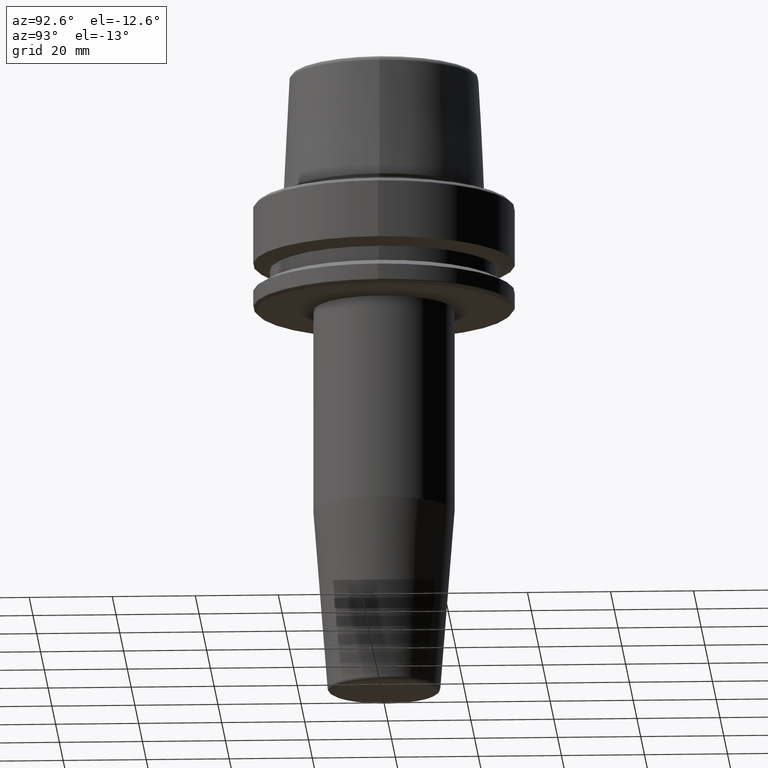
[diagram: clean part render]
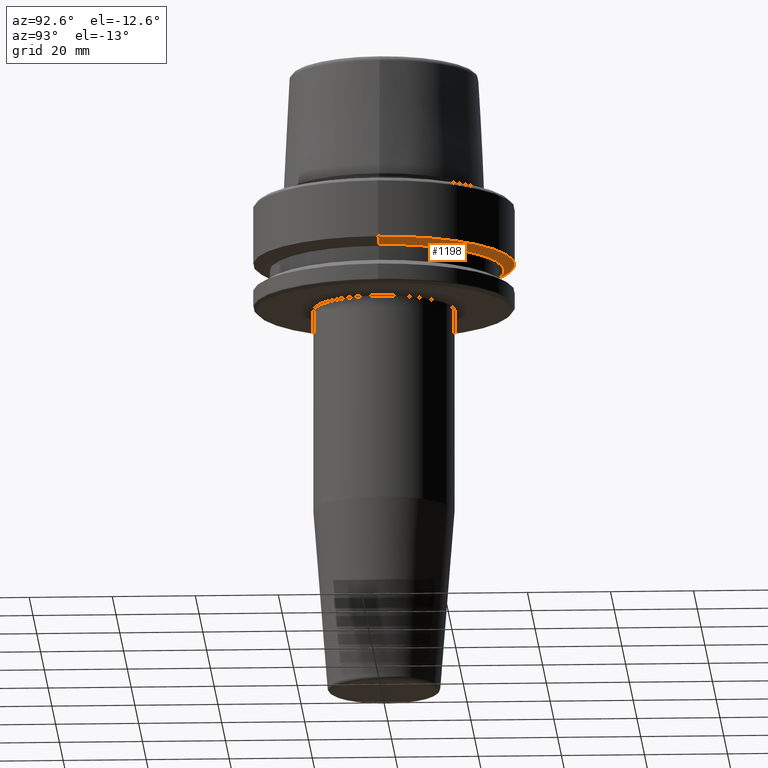
[diagram: same view with one face highlighted and labeled with its STEP entity id]
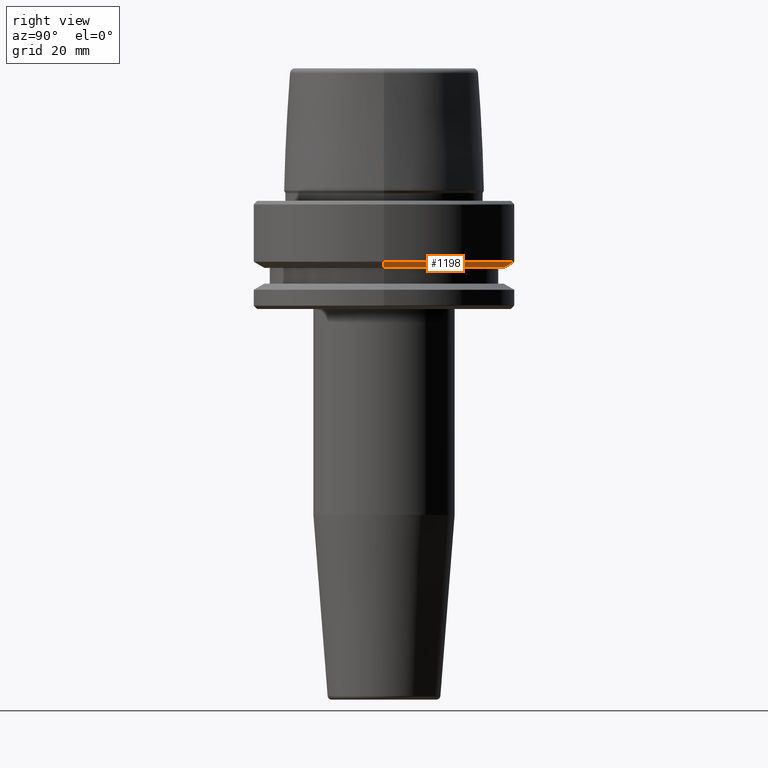
[diagram: same view with one face highlighted and labeled with its STEP entity id]
A machine part, auxiliary view. The second image highlights one B-rep face of the part: STEP entity #1198.
A second angle (right view) of the same face is appended — the face is thin or edge-on in the first view.
In plain terms, the highlighted conical surface has half-angle 60 deg.
Its self-contained STEP definition (entity closure, byte-faithful):
#68 = CARTESIAN_POINT ( 'NONE',  ( -28.94089653438085100, 3.700937523921292900E-015, -16.10000000000001600 ) ) ;
#92 = ORIENTED_EDGE ( 'NONE', *, *, #316, .F. ) ;
#122 = EDGE_LOOP ( 'NONE', ( #315, #1218, #125, #92 ) ) ;
#123 = EDGE_CURVE ( 'NONE', #1101, #155, #311, .T. ) ;
#125 = ORIENTED_EDGE ( 'NONE', *, *, #123, .F. ) ;
#136 = DIRECTION ( 'NONE',  ( -0.8660254037844389300, 1.060575238724907300E-016, 0.4999999999999995000 ) ) ;
#150 = EDGE_CURVE ( 'NONE', #1048, #155, #623, .T. ) ;
#152 = DIRECTION ( 'NONE',  ( -0.0000000000000000000, -0.0000000000000000000, 1.000000000000000000 ) ) ;
#155 = VERTEX_POINT ( 'NONE', #727 ) ;
#168 = DIRECTION ( 'NONE',  ( 0.8660254037844389300, 0.0000000000000000000, 0.4999999999999995000 ) ) ;
#276 = AXIS2_PLACEMENT_3D ( 'NONE', #409, #677, #1093 ) ;
#309 = LINE ( 'NONE', #898, #965 ) ;
#311 = CIRCLE ( 'NONE', #495, 31.50000000000000000 ) ;
#315 = ORIENTED_EDGE ( 'NONE', *, *, #416, .T. ) ;
#316 = EDGE_CURVE ( 'NONE', #1077, #1101, #309, .T. ) ;
#343 = CARTESIAN_POINT ( 'NONE',  ( 0.0000000000000000000, 0.0000000000000000000, -16.10000000000001600 ) ) ;
#409 = CARTESIAN_POINT ( 'NONE',  ( 0.0000000000000000000, 0.0000000000000000000, -16.10000000000001600 ) ) ;
#416 = EDGE_CURVE ( 'NONE', #1077, #1048, #608, .T. ) ;
#495 = AXIS2_PLACEMENT_3D ( 'NONE', #1064, #765, #1031 ) ;
#608 = CIRCLE ( 'NONE', #1203, 28.94089653438085100 ) ;
#623 = LINE ( 'NONE', #944, #1104 ) ;
#677 = DIRECTION ( 'NONE',  ( -0.0000000000000000000, -0.0000000000000000000, 1.000000000000000000 ) ) ;
#717 = DIRECTION ( 'NONE',  ( 1.000000000000000000, 0.0000000000000000000, 0.0000000000000000000 ) ) ;
#727 = CARTESIAN_POINT ( 'NONE',  ( -31.50000000000000000, 3.857637417314162700E-015, -14.62250092524070100 ) ) ;
#765 = DIRECTION ( 'NONE',  ( -0.0000000000000000000, -0.0000000000000000000, 1.000000000000000000 ) ) ;
#898 = CARTESIAN_POINT ( 'NONE',  ( 28.94089653438085100, 0.0000000000000000000, -16.10000000000001600 ) ) ;
#944 = CARTESIAN_POINT ( 'NONE',  ( -28.94089653438085100, 3.544237630528423800E-015, -16.10000000000001600 ) ) ;
#948 = CARTESIAN_POINT ( 'NONE',  ( 28.94089653438085100, 0.0000000000000000000, -16.10000000000001600 ) ) ;
#965 = VECTOR ( 'NONE', #168, 1000.000000000000000 ) ;
#990 = FACE_OUTER_BOUND ( 'NONE', #122, .T. ) ;
#1031 = DIRECTION ( 'NONE',  ( 1.000000000000000000, 0.0000000000000000000, 0.0000000000000000000 ) ) ;
#1048 = VERTEX_POINT ( 'NONE', #68 ) ;
#1059 = CARTESIAN_POINT ( 'NONE',  ( 31.50000000000000000, 0.0000000000000000000, -14.62250092524070100 ) ) ;
#1064 = CARTESIAN_POINT ( 'NONE',  ( 0.0000000000000000000, 0.0000000000000000000, -14.62250092524070100 ) ) ;
#1077 = VERTEX_POINT ( 'NONE', #948 ) ;
#1093 = DIRECTION ( 'NONE',  ( 1.000000000000000000, 0.0000000000000000000, 0.0000000000000000000 ) ) ;
#1094 = CONICAL_SURFACE ( 'NONE', #276, 28.94089653438085100, 1.047197551196598300 ) ;
#1101 = VERTEX_POINT ( 'NONE', #1059 ) ;
#1104 = VECTOR ( 'NONE', #136, 1000.000000000000000 ) ;
#1198 = ADVANCED_FACE ( 'NONE', ( #990 ), #1094, .T. ) ;
#1203 = AXIS2_PLACEMENT_3D ( 'NONE', #343, #152, #717 ) ;
#1218 = ORIENTED_EDGE ( 'NONE', *, *, #150, .T. ) ;